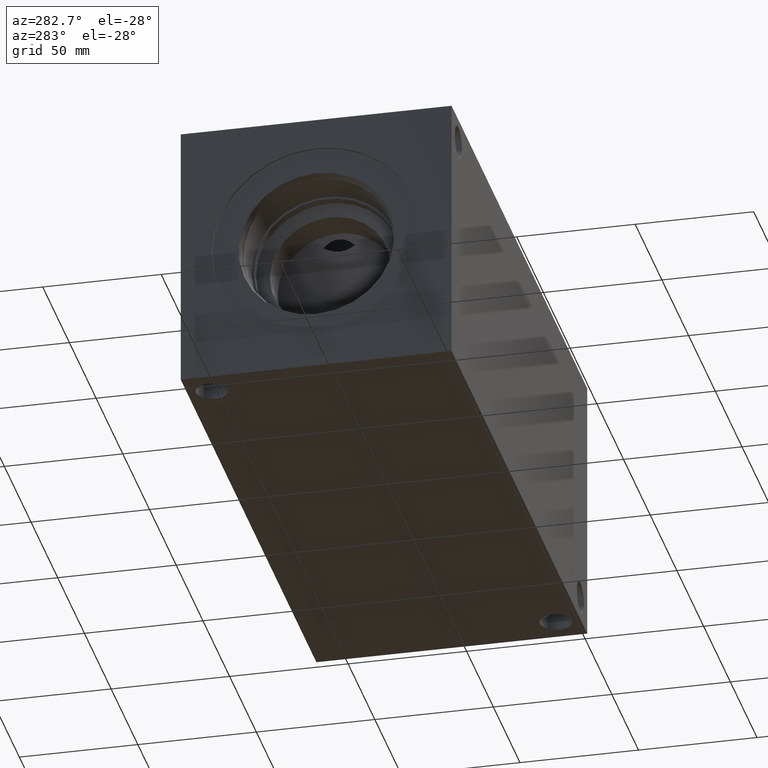
[diagram: clean part render]
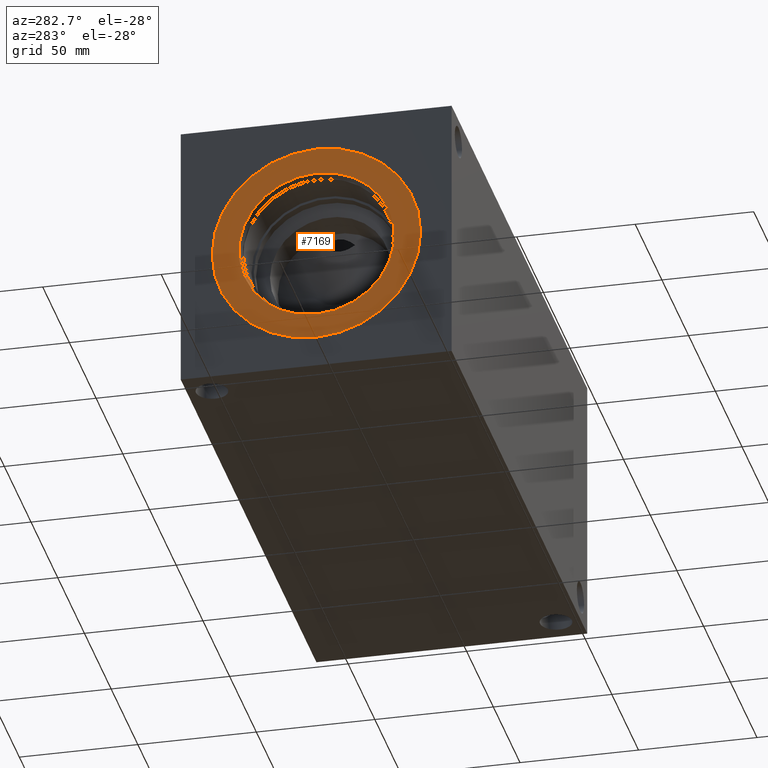
[diagram: same view with one face highlighted and labeled with its STEP entity id]
A machine part, auxiliary view. The second image highlights one B-rep face of the part: STEP entity #7169.
In plain terms, the highlighted planar face has unit normal (1, 0, 0).
Its self-contained STEP definition (entity closure, byte-faithful):
#147=CIRCLE('',#7540,44.069);
#148=CIRCLE('',#7541,44.069);
#149=CIRCLE('',#7543,32.8549);
#150=CIRCLE('',#7544,32.8549);
#195=FACE_BOUND('',#1247,.T.);
#844=FACE_OUTER_BOUND('',#1246,.T.);
#1246=EDGE_LOOP('',(#6239,#6240));
#1247=EDGE_LOOP('',(#6241,#6242));
#3314=VERTEX_POINT('',#12239);
#3315=VERTEX_POINT('',#12241);
#3316=VERTEX_POINT('',#12245);
#3317=VERTEX_POINT('',#12246);
#4297=EDGE_CURVE('',#3314,#3315,#147,.T.);
#4298=EDGE_CURVE('',#3315,#3314,#148,.T.);
#4299=EDGE_CURVE('',#3316,#3317,#149,.T.);
#4300=EDGE_CURVE('',#3317,#3316,#150,.T.);
#6239=ORIENTED_EDGE('',*,*,#4298,.F.);
#6240=ORIENTED_EDGE('',*,*,#4297,.F.);
#6241=ORIENTED_EDGE('',*,*,#4299,.T.);
#6242=ORIENTED_EDGE('',*,*,#4300,.T.);
#6513=PLANE('',#7542);
#7169=ADVANCED_FACE('',(#844,#195),#6513,.F.);
#7540=AXIS2_PLACEMENT_3D('',#12242,#8942,#8943);
#7541=AXIS2_PLACEMENT_3D('',#12243,#8944,#8945);
#7542=AXIS2_PLACEMENT_3D('',#12244,#8946,#8947);
#7543=AXIS2_PLACEMENT_3D('',#12247,#8948,#8949);
#7544=AXIS2_PLACEMENT_3D('',#12248,#8950,#8951);
#8942=DIRECTION('center_axis',(1.,0.,0.));
#8943=DIRECTION('ref_axis',(0.,0.,-1.));
#8944=DIRECTION('center_axis',(1.,0.,0.));
#8945=DIRECTION('ref_axis',(0.,0.,-1.));
#8946=DIRECTION('center_axis',(1.,0.,0.));
#8947=DIRECTION('ref_axis',(0.,0.,-1.));
#8948=DIRECTION('center_axis',(1.,0.,0.));
#8949=DIRECTION('ref_axis',(0.,0.,-1.));
#8950=DIRECTION('center_axis',(1.,0.,0.));
#8951=DIRECTION('ref_axis',(0.,0.,-1.));
#12239=CARTESIAN_POINT('',(0.7874,57.15,13.081));
#12241=CARTESIAN_POINT('',(0.7874,57.15,101.219));
#12242=CARTESIAN_POINT('Origin',(0.7874,57.15,57.15));
#12243=CARTESIAN_POINT('Origin',(0.7874,57.15,57.15));
#12244=CARTESIAN_POINT('Origin',(0.7874,57.15,90.0049));
#12245=CARTESIAN_POINT('',(0.7874,57.15,90.0049));
#12246=CARTESIAN_POINT('',(0.787400000000001,57.15,24.2951));
#12247=CARTESIAN_POINT('Origin',(0.7874,57.15,57.15));
#12248=CARTESIAN_POINT('Origin',(0.7874,57.15,57.15));